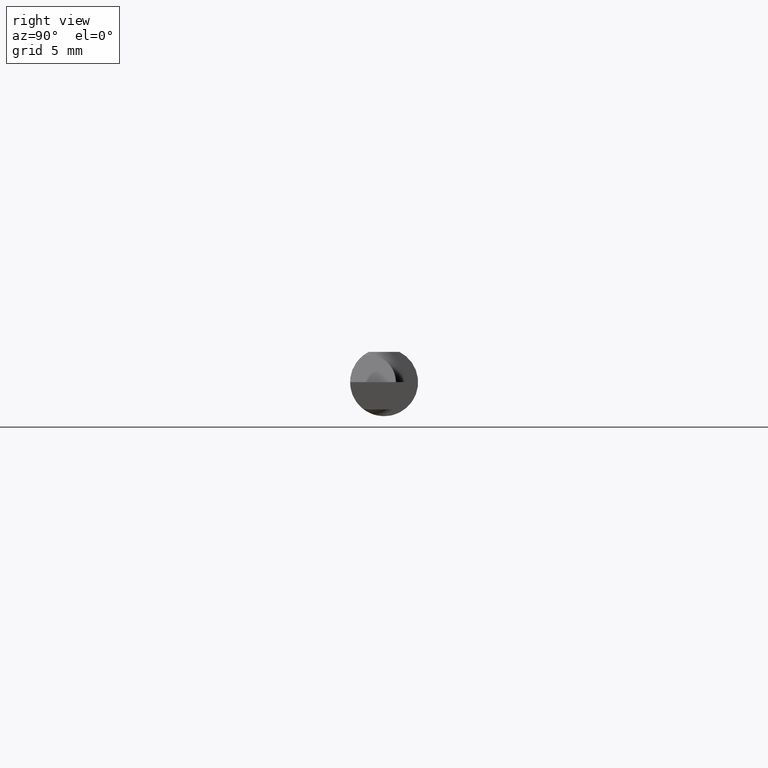
[diagram: clean part render]
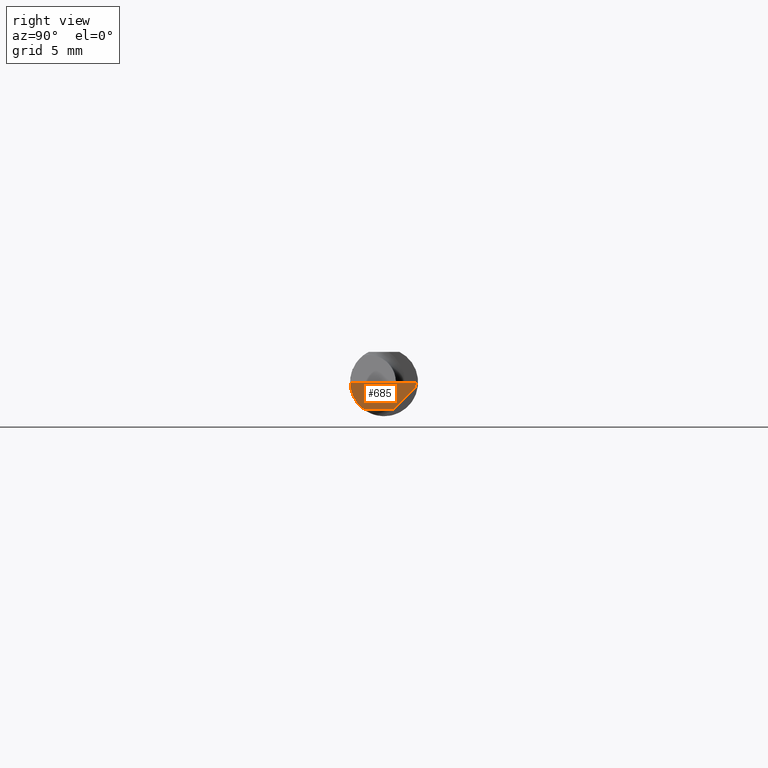
[diagram: same view with one face highlighted and labeled with its STEP entity id]
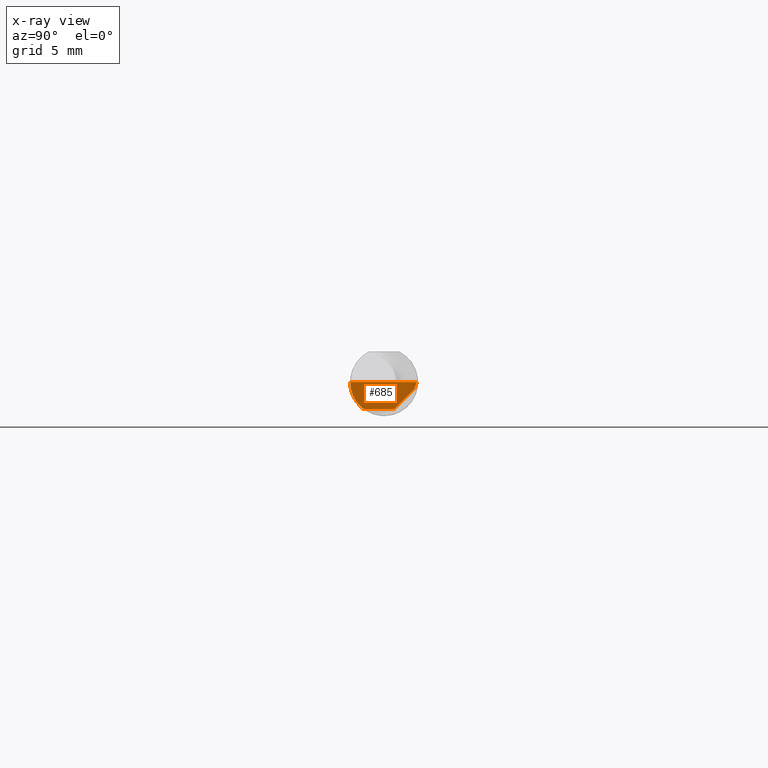
[diagram: x-ray of the same camera — body ghosted, the highlighted face saturated]
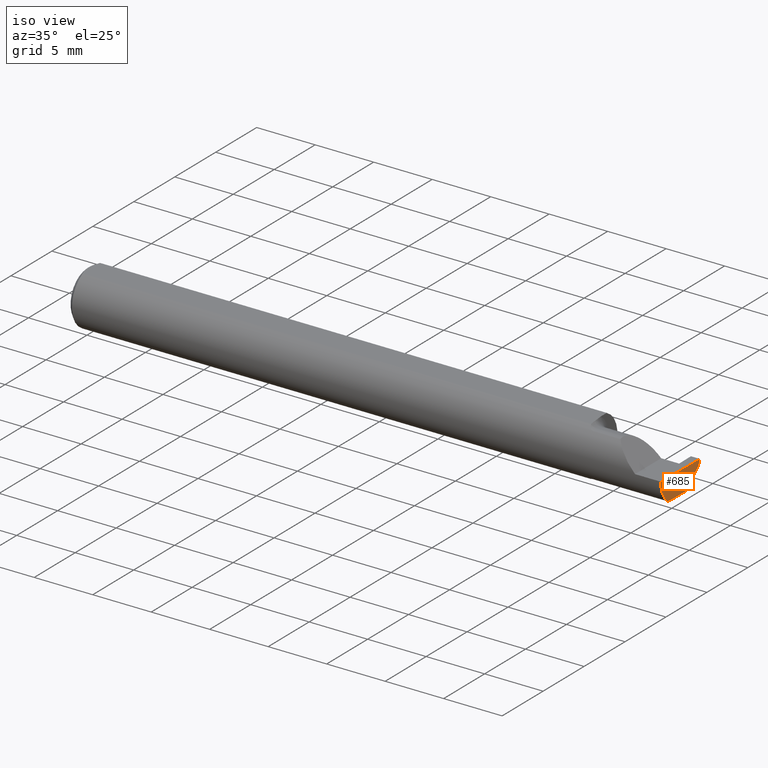
[diagram: same view with one face highlighted and labeled with its STEP entity id]
A machine part, right view. The second image highlights one B-rep face of the part: STEP entity #685.
The next image is the same camera in x-ray: the body ghosted, the highlighted face saturated — about 0% of this face is hidden behind the body in this view.
A second angle (iso view) of the same face is appended — the face is thin or edge-on in the first view.
In plain terms, the highlighted planar face has unit normal (-0.9995, 0.0174, 0.0262).
Its self-contained STEP definition (entity closure, byte-faithful):
#4 = CARTESIAN_POINT ( 'NONE',  ( 1.999906583493247680, 0.08935513411407894346, -0.002870745427926564477 ) ) ;
#8 = CARTESIAN_POINT ( 'NONE',  ( 1.995486889784650053, -0.05810704225352111146, -0.07337936794867826185 ) ) ;
#60 = CARTESIAN_POINT ( 'NONE',  ( 1.999381723781206155, 0.08348456554894213844, -0.01899999999999999953 ) ) ;
#75 = LINE ( 'NONE', #734, #426 ) ;
#112 = LINE ( 'NONE', #232, #266 ) ;
#118 = DIRECTION ( 'NONE',  ( -0.03084274406794415904, -0.7067703747110382073, -0.7067703747110356538 ) ) ;
#119 = EDGE_CURVE ( 'NONE', #120, #458, #401, .T. ) ;
#120 = VERTEX_POINT ( 'NONE', #274 ) ;
#143 =( BOUNDED_CURVE ( )  B_SPLINE_CURVE ( 3, ( #778, #474, #718, #298 ),
 .UNSPECIFIED., .F., .T. ) 
 B_SPLINE_CURVE_WITH_KNOTS ( ( 4, 4 ),
 ( 0.3794527164476053094, 0.5877155292608622350 ),
 .UNSPECIFIED. ) 
 CURVE ( )  GEOMETRIC_REPRESENTATION_ITEM ( )  RATIONAL_B_SPLINE_CURVE ( ( 1.000000000000000000, 0.9963888149483995926, 0.9963888149483995926, 1.000000000000000000 ) ) 
 REPRESENTATION_ITEM ( '' )  );
#173 = CARTESIAN_POINT ( 'NONE',  ( 1.996937940439960535, 0.02748456554894196727, -0.07499999999999998335 ) ) ;
#179 = LINE ( 'NONE', #664, #193 ) ;
#180 = VERTEX_POINT ( 'NONE', #240 ) ;
#185 = DIRECTION ( 'NONE',  ( -0.01744642479411313493, -0.9998477995484629233, 3.463134274570152404E-16 ) ) ;
#186 = VERTEX_POINT ( 'NONE', #60 ) ;
#193 = VECTOR ( 'NONE', #118, 39.37007874015748854 ) ;
#194 = CARTESIAN_POINT ( 'NONE',  ( 1.995561922431087876, -0.08091355869144019330, -0.05531953381055035313 ) ) ;
#203 = EDGE_CURVE ( 'NONE', #225, #781, #112, .T. ) ;
#209 = EDGE_CURVE ( 'NONE', #458, #186, #669, .T. ) ;
#225 = VERTEX_POINT ( 'NONE', #173 ) ;
#232 = CARTESIAN_POINT ( 'NONE',  ( 1.997436282896842163, 0.05604437736224970185, -0.07500000000000002498 ) ) ;
#236 = PLANE ( 'NONE',  #611 ) ;
#240 = CARTESIAN_POINT ( 'NONE',  ( 1.995486889784650053, -0.05810704225352111146, -0.07337936794867826185 ) ) ;
#248 = CARTESIAN_POINT ( 'NONE',  ( 1.996026586675631709, -0.09358669535931166128, -0.02913391928411207185 ) ) ;
#266 = VECTOR ( 'NONE', #185, 39.37007874015748143 ) ;
#274 = CARTESIAN_POINT ( 'NONE',  ( 1.996789369178486373, -0.09359999999634724399, 1.965990811775635199E-19 ) ) ;
#289 = DIRECTION ( 'NONE',  ( 0.02618093032612054880, 0.000000000000000000, 0.9996572206948033390 ) ) ;
#293 = EDGE_CURVE ( 'NONE', #186, #225, #179, .T. ) ;
#298 = CARTESIAN_POINT ( 'NONE',  ( 1.995715029210241243, -0.04259999999999997816, -0.07499999999999998335 ) ) ;
#321 = CARTESIAN_POINT ( 'NONE',  ( 1.996788249052547259, -0.09359999022555408332, -4.277588313355801215E-05 ) ) ;
#344 = DIRECTION ( 'NONE',  ( 0.01744642479411314534, 0.9998477995484629233, -2.135106780035503491E-18 ) ) ;
#380 = ORIENTED_EDGE ( 'NONE', *, *, #646, .T. ) ;
#391 = CARTESIAN_POINT ( 'NONE',  ( 1.996678706298551376, -0.09994204647866641866, 4.067411700507134861E-19 ) ) ;
#401 = LINE ( 'NONE', #391, #735 ) ;
#420 = CARTESIAN_POINT ( 'NONE',  ( 1.996788249052547259, -0.09359999022555408332, -4.277588313355801215E-05 ) ) ;
#425 = DIRECTION ( 'NONE',  ( -0.03056411404777943305, -0.3418603543644915810, -0.9392536042231929283 ) ) ;
#426 = VECTOR ( 'NONE', #548, 39.37007874015748854 ) ;
#428 = EDGE_CURVE ( 'NONE', #625, #120, #75, .T. ) ;
#434 = EDGE_CURVE ( 'NONE', #180, #625, #690, .T. ) ;
#458 = VERTEX_POINT ( 'NONE', #524 ) ;
#474 = CARTESIAN_POINT ( 'NONE',  ( 1.995547692684113805, -0.05300374992736055918, -0.07445783144524571739 ) ) ;
#483 = ORIENTED_EDGE ( 'NONE', *, *, #209, .F. ) ;
#524 = CARTESIAN_POINT ( 'NONE',  ( 2.000000000000000444, 0.09040000000000000813, 6.269377719834979509E-17 ) ) ;
#531 = ORIENTED_EDGE ( 'NONE', *, *, #428, .F. ) ;
#537 = FACE_OUTER_BOUND ( 'NONE', #686, .T. ) ;
#548 = DIRECTION ( 'NONE',  ( 0.02617296143184117893, -0.0004568507411563393905, 0.9996573249755575929 ) ) ;
#561 = ORIENTED_EDGE ( 'NONE', *, *, #293, .F. ) ;
#591 = ORIENTED_EDGE ( 'NONE', *, *, #119, .F. ) ;
#611 = AXIS2_PLACEMENT_3D ( 'NONE', #720, #709, #289 ) ;
#614 = VECTOR ( 'NONE', #425, 39.37007874015748143 ) ;
#625 = VERTEX_POINT ( 'NONE', #420 ) ;
#646 = EDGE_CURVE ( 'NONE', #180, #781, #143, .T. ) ;
#664 = CARTESIAN_POINT ( 'NONE',  ( 1.999287184445666554, 0.08131816941191073733, -0.02116639613703140757 ) ) ;
#669 = LINE ( 'NONE', #4, #614 ) ;
#671 = CARTESIAN_POINT ( 'NONE',  ( 1.995715029210241243, -0.04259999999999997816, -0.07499999999999998335 ) ) ;
#685 = ADVANCED_FACE ( 'NONE', ( #537 ), #236, .F. ) ;
#686 = EDGE_LOOP ( 'NONE', ( #380, #763, #561, #483, #591, #531, #726 ) ) ;
#690 =( BOUNDED_CURVE ( )  B_SPLINE_CURVE ( 3, ( #8, #194, #248, #321 ),
 .UNSPECIFIED., .F., .T. ) 
 B_SPLINE_CURVE_WITH_KNOTS ( ( 4, 4 ),
 ( 0.08204942185700569990, 0.9826237902196914842 ),
 .UNSPECIFIED. ) 
 CURVE ( )  GEOMETRIC_REPRESENTATION_ITEM ( )  RATIONAL_B_SPLINE_CURVE ( ( 1.000000000000000000, 0.9335481000009943076, 0.9335481000009943076, 1.000000000000000000 ) ) 
 REPRESENTATION_ITEM ( '' )  );
#709 = DIRECTION ( 'NONE',  ( -0.9995051766793262571, 0.01744044634007060890, 0.02617694830739122902 ) ) ;
#718 = CARTESIAN_POINT ( 'NONE',  ( 1.995624014772495514, -0.04781600192481524209, -0.07499999999999999722 ) ) ;
#720 = CARTESIAN_POINT ( 'NONE',  ( 1.997382703856816155, 0.09044568507411562819, -0.09996573249755577595 ) ) ;
#726 = ORIENTED_EDGE ( 'NONE', *, *, #434, .F. ) ;
#734 = CARTESIAN_POINT ( 'NONE',  ( 1.994172072281005237, -0.09355431490906530867, -0.09996576130738771271 ) ) ;
#735 = VECTOR ( 'NONE', #344, 39.37007874015748143 ) ;
#763 = ORIENTED_EDGE ( 'NONE', *, *, #203, .F. ) ;
#778 = CARTESIAN_POINT ( 'NONE',  ( 1.995486889784650053, -0.05810704225352111146, -0.07337936794867826185 ) ) ;
#781 = VERTEX_POINT ( 'NONE', #671 ) ;